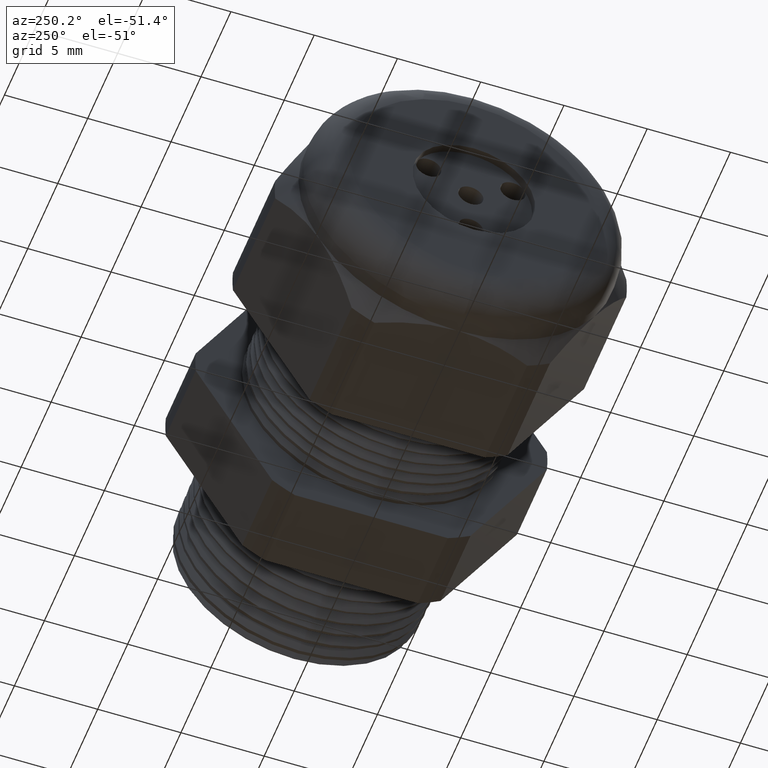
[diagram: clean part render]
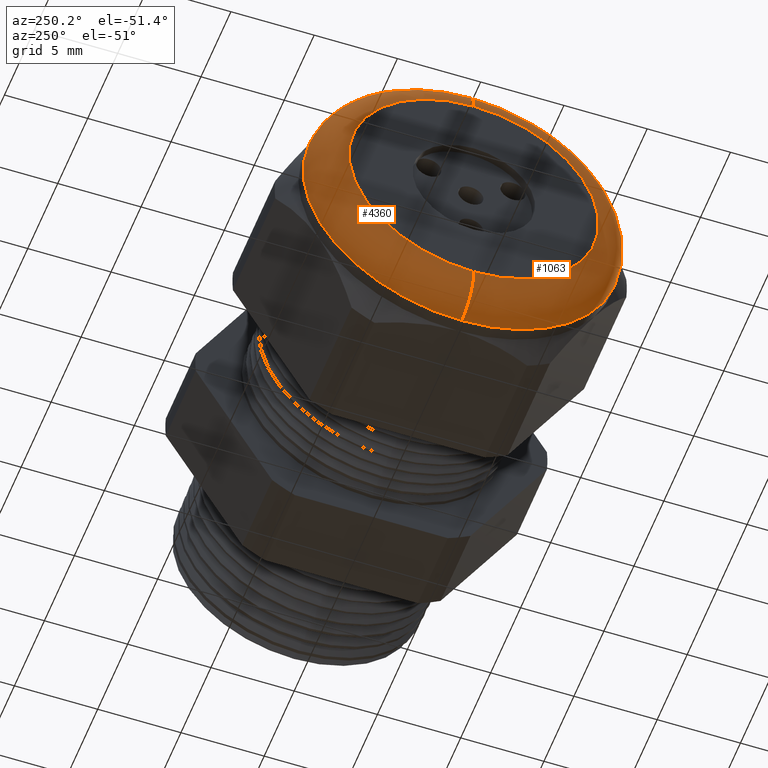
[diagram: same view with one multi-face feature highlighted, each face labeled with its STEP entity id]
A machine part, auxiliary view. The highlighted faces form ONE feature: a constant-radius fillet chain: 2 tangent blend faces with common blend radius 2.032 mm. The faces share edges in the B-rep.
Their STEP definitions:
[1] entity #1063 (Torus):
#2 = VERTEX_POINT ( 'NONE', #1458 ) ;
#3 = EDGE_CURVE ( 'NONE', #4, #4386, #1456, .T. ) ;
#4 = VERTEX_POINT ( 'NONE', #1515 ) ;
#24 = DIRECTION ( 'NONE',  ( 0.0000000000000000000, -1.224646799147353500E-016, 1.000000000000000000 ) ) ;
#886 = EDGE_CURVE ( 'NONE', #2, #4, #4215, .T. ) ;
#905 = EDGE_CURVE ( 'NONE', #4386, #4383, #2274, .T. ) ;
#1045 = ORIENTED_EDGE ( 'NONE', *, *, #4381, .T. ) ;
#1046 = ORIENTED_EDGE ( 'NONE', *, *, #905, .F. ) ;
#1063 = ADVANCED_FACE ( 'NONE', ( #2749 ), #2741, .T. ) ;
#1064 = EDGE_LOOP ( 'NONE', ( #1065, #1066, #1045, #1046 ) ) ;
#1065 = ORIENTED_EDGE ( 'NONE', *, *, #3, .F. ) ;
#1066 = ORIENTED_EDGE ( 'NONE', *, *, #886, .F. ) ;
#1453 = DIRECTION ( 'NONE',  ( 0.0000000000000000000, 1.000000000000000000, 1.224646799147353200E-016 ) ) ;
#1454 = CARTESIAN_POINT ( 'NONE',  ( -1.100000000000000100, 3.612708057484693200E-017, -0.2950000000000001000 ) ) ;
#1455 = AXIS2_PLACEMENT_3D ( 'NONE', #1454, #1453, #24 ) ;
#1456 = CIRCLE ( 'NONE', #1455, 0.08000000000000000200 ) ;
#1458 = CARTESIAN_POINT ( 'NONE',  ( -1.100000000000000100, 4.592425496802576100E-017, 0.3750000000000001100 ) ) ;
#1515 = CARTESIAN_POINT ( 'NONE',  ( -1.100000000000000100, 0.0000000000000000000, -0.3750000000000001100 ) ) ;
#2270 = DIRECTION ( 'NONE',  ( 0.0000000000000000000, 0.0000000000000000000, 1.000000000000000000 ) ) ;
#2271 = DIRECTION ( 'NONE',  ( -1.000000000000000000, 0.0000000000000000000, 0.0000000000000000000 ) ) ;
#2272 = CARTESIAN_POINT ( 'NONE',  ( -1.179999999999999900, 0.0000000000000000000, 0.0000000000000000000 ) ) ;
#2273 = AXIS2_PLACEMENT_3D ( 'NONE', #2272, #2271, #2270 ) ;
#2274 = CIRCLE ( 'NONE', #2273, 0.2950000000000001000 ) ;
#2732 = DIRECTION ( 'NONE',  ( 0.0000000000000000000, 0.0000000000000000000, 1.000000000000000000 ) ) ;
#2735 = DIRECTION ( 'NONE',  ( -1.000000000000000000, 0.0000000000000000000, 0.0000000000000000000 ) ) ;
#2736 = CARTESIAN_POINT ( 'NONE',  ( -1.100000000000000100, 0.0000000000000000000, 0.0000000000000000000 ) ) ;
#2738 = AXIS2_PLACEMENT_3D ( 'NONE', #2736, #2735, #2732 ) ;
#2741 = TOROIDAL_SURFACE ( 'NONE', #2738, 0.2950000000000001000, 0.08000000000000000200 ) ;
#2749 = FACE_OUTER_BOUND ( 'NONE', #1064, .T. ) ;
#4120 = DIRECTION ( 'NONE',  ( 0.0000000000000000000, 0.0000000000000000000, -1.000000000000000000 ) ) ;
#4121 = DIRECTION ( 'NONE',  ( 0.0000000000000000000, -1.000000000000000000, 0.0000000000000000000 ) ) ;
#4122 = CARTESIAN_POINT ( 'NONE',  ( -1.100000000000000100, 0.0000000000000000000, 0.2950000000000001000 ) ) ;
#4123 = AXIS2_PLACEMENT_3D ( 'NONE', #4122, #4121, #4120 ) ;
#4136 = CIRCLE ( 'NONE', #4123, 0.08000000000000000200 ) ;
#4210 = DIRECTION ( 'NONE',  ( 0.0000000000000000000, 0.0000000000000000000, 1.000000000000000000 ) ) ;
#4211 = DIRECTION ( 'NONE',  ( 1.000000000000000000, 0.0000000000000000000, 0.0000000000000000000 ) ) ;
#4213 = CARTESIAN_POINT ( 'NONE',  ( -1.100000000000000100, 0.0000000000000000000, 0.0000000000000000000 ) ) ;
#4214 = AXIS2_PLACEMENT_3D ( 'NONE', #4213, #4211, #4210 ) ;
#4215 = CIRCLE ( 'NONE', #4214, 0.3750000000000001100 ) ;
#4218 = CARTESIAN_POINT ( 'NONE',  ( -1.179999999999999900, 4.102566777143634000E-017, -0.2950000000000001000 ) ) ;
#4220 = CARTESIAN_POINT ( 'NONE',  ( -1.179999999999999900, 0.0000000000000000000, 0.2950000000000001000 ) ) ;
#4381 = EDGE_CURVE ( 'NONE', #2, #4383, #4136, .T. ) ;
#4383 = VERTEX_POINT ( 'NONE', #4220 ) ;
#4386 = VERTEX_POINT ( 'NONE', #4218 ) ;
[2] entity #4360 (Torus):
#1 = ORIENTED_EDGE ( 'NONE', *, *, #3, .T. ) ;
#2 = VERTEX_POINT ( 'NONE', #1458 ) ;
#3 = EDGE_CURVE ( 'NONE', #4, #4386, #1456, .T. ) ;
#4 = VERTEX_POINT ( 'NONE', #1515 ) ;
#24 = DIRECTION ( 'NONE',  ( 0.0000000000000000000, -1.224646799147353500E-016, 1.000000000000000000 ) ) ;
#1453 = DIRECTION ( 'NONE',  ( 0.0000000000000000000, 1.000000000000000000, 1.224646799147353200E-016 ) ) ;
#1454 = CARTESIAN_POINT ( 'NONE',  ( -1.100000000000000100, 3.612708057484693200E-017, -0.2950000000000001000 ) ) ;
#1455 = AXIS2_PLACEMENT_3D ( 'NONE', #1454, #1453, #24 ) ;
#1456 = CIRCLE ( 'NONE', #1455, 0.08000000000000000200 ) ;
#1458 = CARTESIAN_POINT ( 'NONE',  ( -1.100000000000000100, 4.592425496802576100E-017, 0.3750000000000001100 ) ) ;
#1515 = CARTESIAN_POINT ( 'NONE',  ( -1.100000000000000100, 0.0000000000000000000, -0.3750000000000001100 ) ) ;
#4080 = DIRECTION ( 'NONE',  ( 0.0000000000000000000, 0.0000000000000000000, 1.000000000000000000 ) ) ;
#4081 = DIRECTION ( 'NONE',  ( 1.000000000000000000, 0.0000000000000000000, 0.0000000000000000000 ) ) ;
#4082 = CARTESIAN_POINT ( 'NONE',  ( -1.100000000000000100, 0.0000000000000000000, 0.0000000000000000000 ) ) ;
#4083 = AXIS2_PLACEMENT_3D ( 'NONE', #4082, #4081, #4080 ) ;
#4084 = CIRCLE ( 'NONE', #4083, 0.3750000000000001100 ) ;
#4090 = DIRECTION ( 'NONE',  ( 0.0000000000000000000, 0.0000000000000000000, 1.000000000000000000 ) ) ;
#4091 = DIRECTION ( 'NONE',  ( -1.000000000000000000, 0.0000000000000000000, 0.0000000000000000000 ) ) ;
#4092 = AXIS2_PLACEMENT_3D ( 'NONE', #4097, #4091, #4090 ) ;
#4093 = TOROIDAL_SURFACE ( 'NONE', #4092, 0.2950000000000001000, 0.08000000000000000200 ) ;
#4097 = CARTESIAN_POINT ( 'NONE',  ( -1.100000000000000100, 0.0000000000000000000, 0.0000000000000000000 ) ) ;
#4100 = FACE_OUTER_BOUND ( 'NONE', #4363, .T. ) ;
#4120 = DIRECTION ( 'NONE',  ( 0.0000000000000000000, 0.0000000000000000000, -1.000000000000000000 ) ) ;
#4121 = DIRECTION ( 'NONE',  ( 0.0000000000000000000, -1.000000000000000000, 0.0000000000000000000 ) ) ;
#4122 = CARTESIAN_POINT ( 'NONE',  ( -1.100000000000000100, 0.0000000000000000000, 0.2950000000000001000 ) ) ;
#4123 = AXIS2_PLACEMENT_3D ( 'NONE', #4122, #4121, #4120 ) ;
#4124 = CARTESIAN_POINT ( 'NONE',  ( -1.179999999999999900, 0.0000000000000000000, 0.0000000000000000000 ) ) ;
#4136 = CIRCLE ( 'NONE', #4123, 0.08000000000000000200 ) ;
#4218 = CARTESIAN_POINT ( 'NONE',  ( -1.179999999999999900, 4.102566777143634000E-017, -0.2950000000000001000 ) ) ;
#4220 = CARTESIAN_POINT ( 'NONE',  ( -1.179999999999999900, 0.0000000000000000000, 0.2950000000000001000 ) ) ;
#4222 = DIRECTION ( 'NONE',  ( 0.0000000000000000000, 0.0000000000000000000, 1.000000000000000000 ) ) ;
#4225 = DIRECTION ( 'NONE',  ( -1.000000000000000000, 0.0000000000000000000, 0.0000000000000000000 ) ) ;
#4226 = AXIS2_PLACEMENT_3D ( 'NONE', #4124, #4225, #4222 ) ;
#4227 = CIRCLE ( 'NONE', #4226, 0.2950000000000001000 ) ;
#4360 = ADVANCED_FACE ( 'NONE', ( #4100 ), #4093, .T. ) ;
#4361 = ORIENTED_EDGE ( 'NONE', *, *, #4362, .F. ) ;
#4362 = EDGE_CURVE ( 'NONE', #4, #2, #4084, .T. ) ;
#4363 = EDGE_LOOP ( 'NONE', ( #4361, #1, #4385, #4384 ) ) ;
#4381 = EDGE_CURVE ( 'NONE', #2, #4383, #4136, .T. ) ;
#4382 = EDGE_CURVE ( 'NONE', #4383, #4386, #4227, .T. ) ;
#4383 = VERTEX_POINT ( 'NONE', #4220 ) ;
#4384 = ORIENTED_EDGE ( 'NONE', *, *, #4381, .F. ) ;
#4385 = ORIENTED_EDGE ( 'NONE', *, *, #4382, .F. ) ;
#4386 = VERTEX_POINT ( 'NONE', #4218 ) ;